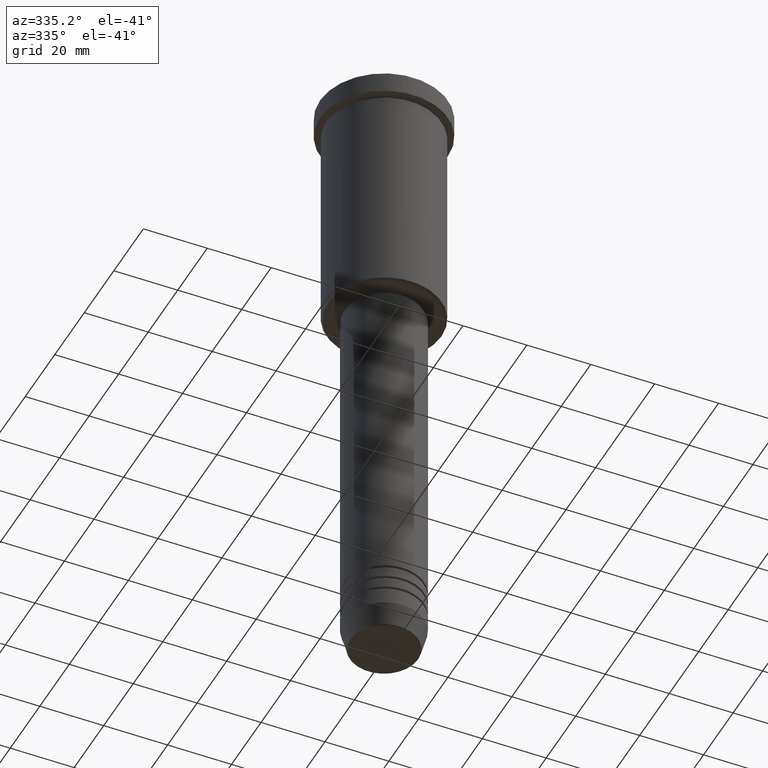
[diagram: clean part render]
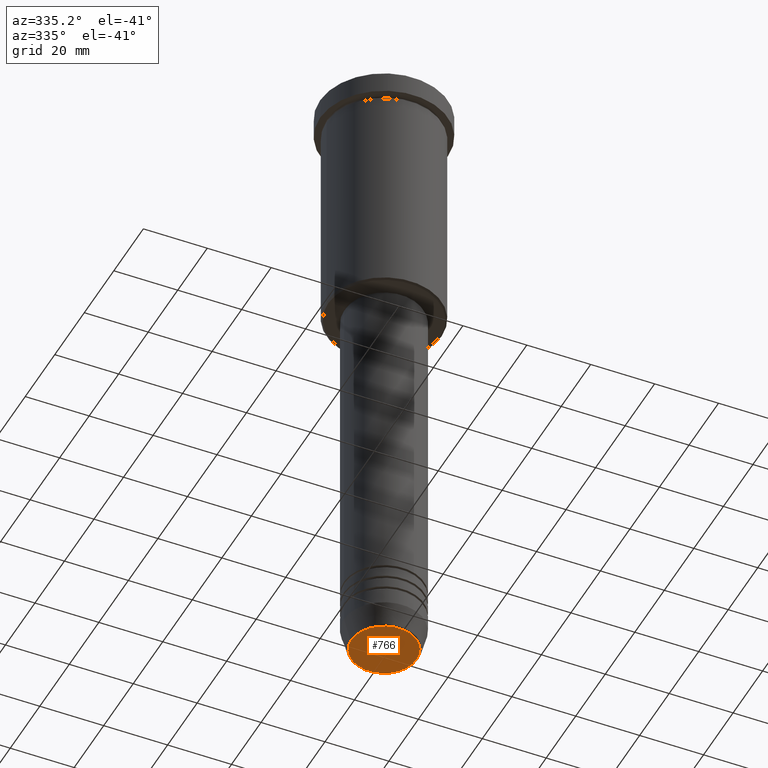
[diagram: same view with one face highlighted and labeled with its STEP entity id]
A machine part, auxiliary view. The second image highlights one B-rep face of the part: STEP entity #766.
In plain terms, the highlighted planar face has unit normal (0, -0, 1).
Its self-contained STEP definition (entity closure, byte-faithful):
#58 = CARTESIAN_POINT ( 'NONE',  ( 0.000000000000000000, 0.000000000000000000, -200.0000000000000000 ) ) ;
#63 = DIRECTION ( 'NONE',  ( 1.000000000000000000, 0.000000000000000000, 0.000000000000000000 ) ) ;
#111 = VERTEX_POINT ( 'NONE', #194 ) ;
#117 = CIRCLE ( 'NONE', #1097, 10.24069215899266538 ) ;
#141 = PLANE ( 'NONE',  #234 ) ;
#163 = EDGE_CURVE ( 'NONE', #111, #607, #117, .T. ) ;
#177 = CIRCLE ( 'NONE', #1102, 10.24069215899266538 ) ;
#194 = CARTESIAN_POINT ( 'NONE',  ( 10.24069215899266538, 0.000000000000000000, -200.0000000000000000 ) ) ;
#222 = DIRECTION ( 'NONE',  ( 0.000000000000000000, -0.000000000000000000, 1.000000000000000000 ) ) ;
#234 = AXIS2_PLACEMENT_3D ( 'NONE', #501, #222, #973 ) ;
#246 = EDGE_CURVE ( 'NONE', #607, #111, #177, .T. ) ;
#337 = ORIENTED_EDGE ( 'NONE', *, *, #246, .T. ) ;
#384 = EDGE_LOOP ( 'NONE', ( #1016, #337 ) ) ;
#390 = CARTESIAN_POINT ( 'NONE',  ( 0.000000000000000000, 0.000000000000000000, -200.0000000000000000 ) ) ;
#501 = CARTESIAN_POINT ( 'NONE',  ( 0.000000000000000000, 0.000000000000000000, -200.0000000000000000 ) ) ;
#600 = FACE_OUTER_BOUND ( 'NONE', #384, .T. ) ;
#605 = DIRECTION ( 'NONE',  ( 0.000000000000000000, 0.000000000000000000, -1.000000000000000000 ) ) ;
#607 = VERTEX_POINT ( 'NONE', #1122 ) ;
#647 = DIRECTION ( 'NONE',  ( 1.000000000000000000, 0.000000000000000000, 0.000000000000000000 ) ) ;
#766 = ADVANCED_FACE ( 'NONE', ( #600 ), #141, .F. ) ;
#855 = DIRECTION ( 'NONE',  ( 0.000000000000000000, 0.000000000000000000, -1.000000000000000000 ) ) ;
#973 = DIRECTION ( 'NONE',  ( 1.000000000000000000, 0.000000000000000000, 0.000000000000000000 ) ) ;
#1016 = ORIENTED_EDGE ( 'NONE', *, *, #163, .T. ) ;
#1097 = AXIS2_PLACEMENT_3D ( 'NONE', #390, #855, #647 ) ;
#1102 = AXIS2_PLACEMENT_3D ( 'NONE', #58, #605, #63 ) ;
#1122 = CARTESIAN_POINT ( 'NONE',  ( -10.24069215899266538, 1.283696036640842967E-15, -200.0000000000000000 ) ) ;